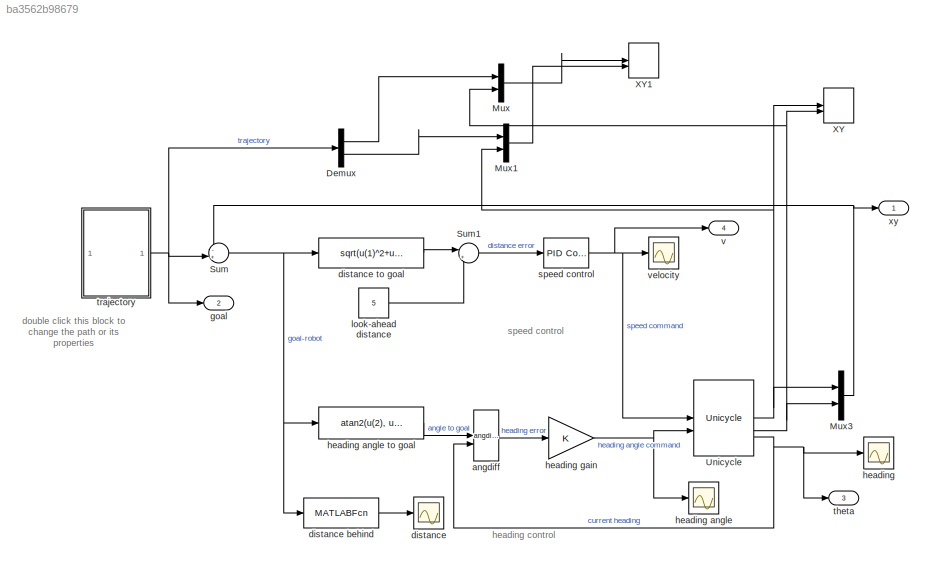
MODEL slx_ba3562b98679
KIND model
CONFIG AbsTol = auto
CONFIG EnableMultiTasking = on
CONFIG FixedStep = 0.2
CONFIG MaxStep = 0.1
CONFIG MinStep = auto
CONFIG RelTol = 1e-3
CONFIG SampleTimeConstraint = Unconstrained
CONFIG SolverName = ode45
CONFIG StartFcn = % remove the red dashed line draw in StopFcn\nh = findobj('Tag',  'SL_PURSUIT_PATH');\nif ~isempty(h)\n    delete(h)\nend
CONFIG StartTime = 0.0
CONFIG StopFcn = % get the waypoints from trajectory block\nh = getSimulinkBlockHandle([gcs '/trajectory'])\npath = str2num(get_param(h, 'path'));\n\n% overlay it on the XY scope, tag it so it can be cleaned up in StartFcn\nset(0, 'ShowHiddenHandles', 'on')\nfig = findobj('name', 'XY');\nax = findobj('type', 'axes');\naxes(ax);\nhold on\nplot(path(:,1), path(:,2), 'Color',  'red', 'LineStyle', '--', 'LineWidth', 2, 'Tag', '...<+68ch>
CONFIG StopTime = 72
BLOCK [Demux] Demux
  Outputs = 2
BLOCK [Mux] Mux
  DisplayOption = bar
  Inputs = 2
BLOCK [Mux] Mux1
  DisplayOption = bar
  Inputs = 2
BLOCK [Mux] Mux3
  DisplayOption = bar
  Inputs = 2
BLOCK [Sum] Sum
  Inputs = -+|
BLOCK [Sum] Sum1
  Inputs = |+-
BLOCK [Reference] Unicycle  REF=roblocks/Vehicles/Unicycle  (lib defined in mdl_2a292b13c81b, mdl_69400f8cfe22, +12 more)
  SourceBlock = roblocks/Vehicles/Unicycle
BLOCK [Record] XY
  CompatibilityTag = XY
  FileSettingsInternal = {"entries":[{"content":{"excelSettings":{"content":{},"type":"Streamout.ExcelSettings"}},"type":"Streamout.FileSettingStorage","uuid":""}],"packageUris":["http:\/\/schema.mathworks.com\/mf0\/streamout_blocks\/R2020a"],"version":"1.0"}
  Layout = [1 1]
  SignalsInternal = {"entries":[{"content":{"signals":[{"content":{"blockPath":[],"dimensions":[1],"domain":"","lineColor":"#a2142f","plots":[1],"port":1,"sid":[""],"signalID":3802,"signalName":"Unicycle:1"},"type":"RecordBlkView.Signal","uuid":""},{"content":{"blockPath":[],"dimensions":[1],"domain":"","lineColor":"#139fff","plots":[1],"port":2,"sid":[""],"signalID":3806,"signalName":"Unicycle:2"},"type":"RecordBlkV...<+168ch>
  VisualizationBindings = {"xyplotplugin":{"info":[{"series":[{"bindingParametersList":[{"parameter":"X-Axis","signalID":3802,"signalName":"Unicycle:1"},{"parameter":"Y-Axis","signalID":3806,"signalName":"Unicycle:2"}],"seriesID":16869}],"subplotID":1}]}}
  st = -1
BLOCK [Record] XY1
  CompatibilityTag = XY
  FileSettingsInternal = {"entries":[{"content":{"excelSettings":{"content":{},"type":"Streamout.ExcelSettings"}},"type":"Streamout.FileSettingStorage","uuid":""}],"packageUris":["http:\/\/schema.mathworks.com\/mf0\/streamout_blocks\/R2020a"],"version":"1.0"}
  Layout = [1 1]
  SignalsInternal = {"entries":[{"content":{"signals":[{"content":{"blockPath":[],"dimensions":[2],"domain":"","hasChildren":true,"lineColor":"#64d413","port":1,"sid":[""],"signalID":3810,"signalName":"Mux"},"type":"RecordBlkView.Signal","uuid":""},{"content":{"blockPath":[],"channel":[1],"dimensions":[2],"domain":"","lineColor":"#4dbeee","parentID":3810,"plots":[1],"port":1,"sid":[""],"signalID":3811,"signalName":"M...<+1039ch>
  VisualizationBindings = {"xyplotplugin":{"info":[{"series":[{"bindingParametersList":[{"parameter":"Y-Axis","signalID":3820,"signalName":"Mux(2)"},{"parameter":"X-Axis","signalID":3821,"signalName":"Mux1(2)"}],"seriesID":45089},{"bindingParametersList":[{"parameter":"X-Axis","signalID":3811,"signalName":"Mux(1)"},{"parameter":"Y-Axis","signalID":3816,"signalName":"Mux1(1)"}],"seriesID":43731}],"subplotID":1}]}}
  st = -1
BLOCK [Reference] angdiff  REF=roblocks/Toolbox/angdiff  (lib defined in mdl_2a292b13c81b, mdl_69400f8cfe22, +12 more)
  SourceBlock = roblocks/Toolbox/angdiff
BLOCK [Scope] distance
  Floating = off
  NumInputPorts = 1
  ScopeSpecificationString = Simulink.scopes.TimeScopeBlockCfg('CurrentConfiguration', extmgr.ConfigurationSet(extmgr.Configuration('Core','General UI',true),extmgr.Configuration('Core','Source UI',true),extmgr.Configuration('Sources','WiredSimulink',true,'DataLoggingVariableName','ScopeData3','DataLoggingSaveFormat','StructureWithTime','DataLoggingLimitDataPoints',true,'DataLoggingDecimation','1'),extmgr.Configuration('Visua...<+1670ch>
BLOCK [MATLABFcn] distance behind
  MATLABFcn = norm(u)
BLOCK [Fcn] distance to goal
  Expr = sqrt(u(1)^2+u(2)^2)
BLOCK [Outport] goal
  Port = 2
  VectorParamsAs1DForOutWhenUnconnected = off
BLOCK [Scope] heading 
  Floating = off
  NumInputPorts = 1
  ScopeSpecificationString = Simulink.scopes.TimeScopeBlockCfg('CurrentConfiguration', extmgr.ConfigurationSet(extmgr.Configuration('Core','General UI',true),extmgr.Configuration('Core','Source UI',true),extmgr.Configuration('Sources','WiredSimulink',true,'DataLoggingSaveFormat','StructureWithTime','DataLoggingLimitDataPoints',true,'DataLoggingDecimation','1'),extmgr.Configuration('Visuals','Time Domain',true,'SerializedDispl...<+1616ch>
BLOCK [Scope] heading angle
  Floating = off
  NumInputPorts = 1
  ScopeSpecificationString = Simulink.scopes.TimeScopeBlockCfg('CurrentConfiguration', extmgr.ConfigurationSet(extmgr.Configuration('Core','General UI',true),extmgr.Configuration('Core','Source UI',true),extmgr.Configuration('Sources','WiredSimulink',true,'DataLoggingVariableName','ScopeData2','DataLoggingSaveFormat','StructureWithTime','DataLoggingLimitDataPoints',true,'DataLoggingDecimation','1'),extmgr.Configuration('Visua...<+1665ch>
BLOCK [Fcn] heading angle to goal
  Expr = atan2(u(2), u(1))
BLOCK [Gain] heading gain
BLOCK [Constant] look-ahead distance
  Value = 5
BLOCK [Reference] speed control  REF=simulink_need_slupdate/PID Controller
  SourceBlock = simulink_need_slupdate/PID Controller
  SourceType = PID Controller
BLOCK [Outport] theta
  Port = 3
  VectorParamsAs1DForOutWhenUnconnected = off
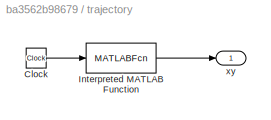
BLOCK [SubSystem] trajectory
BLOCK [Clock] trajectory/Clock
BLOCK [MATLABFcn] trajectory/Interpreted MATLAB Function
  MATLABFcn = interp1( linspace(0, total_time, size(robot_traj,1)), robot_traj, u)
BLOCK [Outport] trajectory/xy
  VectorParamsAs1DForOutWhenUnconnected = off
BLOCK [Outport] v
  Port = 4
  VectorParamsAs1DForOutWhenUnconnected = off
BLOCK [Scope] velocity
  Floating = off
  NumInputPorts = 1
  ScopeSpecificationString = Simulink.scopes.TimeScopeBlockCfg('CurrentConfiguration', extmgr.ConfigurationSet(extmgr.Configuration('Core','General UI',true),extmgr.Configuration('Core','Source UI',true),extmgr.Configuration('Sources','WiredSimulink',true,'DataLoggingVariableName','ScopeData1','DataLoggingSaveFormat','StructureWithTime','DataLoggingLimitDataPoints',true,'DataLoggingDecimation','1'),extmgr.Configuration('Visua...<+1661ch>
BLOCK [Outport] xy
  VectorParamsAs1DForOutWhenUnconnected = off
ANNOTATION (root): double click this block to change the path or its properties
ANNOTATION (root): heading control
ANNOTATION (root): speed control
LINE Demux:1 -> Mux:1
LINE Demux:2 -> Mux1:1
LINE Mux1:1 -> XY1:2
NET Mux3:1 -> Sum:1, xy:1
LINE Mux:1 -> XY1:1
LINE Sum1:1 -> speed control:1
NET Sum:1 -> distance behind:1, distance to goal:1, heading angle to goal:1
NET Unicycle:1 -> Mux1:2, Mux3:1, XY:1
NET Unicycle:2 -> Mux3:2, Mux:2, XY:2
NET Unicycle:3 -> angdiff:2, heading :1, theta:1
LINE angdiff:1 -> heading gain:1
LINE distance behind:1 -> distance:1
LINE distance to goal:1 -> Sum1:1
LINE heading angle to goal:1 -> angdiff:1
NET heading gain:1 -> Unicycle:2, heading angle:1
LINE look-ahead distance:1 -> Sum1:2
NET speed control:1 -> Unicycle:1, v:1, velocity:1
LINE trajectory/Clock:1 -> trajectory/Interpreted MATLAB Function:1
LINE trajectory/Interpreted MATLAB Function:1 -> trajectory/xy:1
NET trajectory:1 -> Demux:1, Sum:2, goal:1
note: NET lines group one-source signal fan-out (src -> all destinations, sorted); 1:1 wires keep LINE
